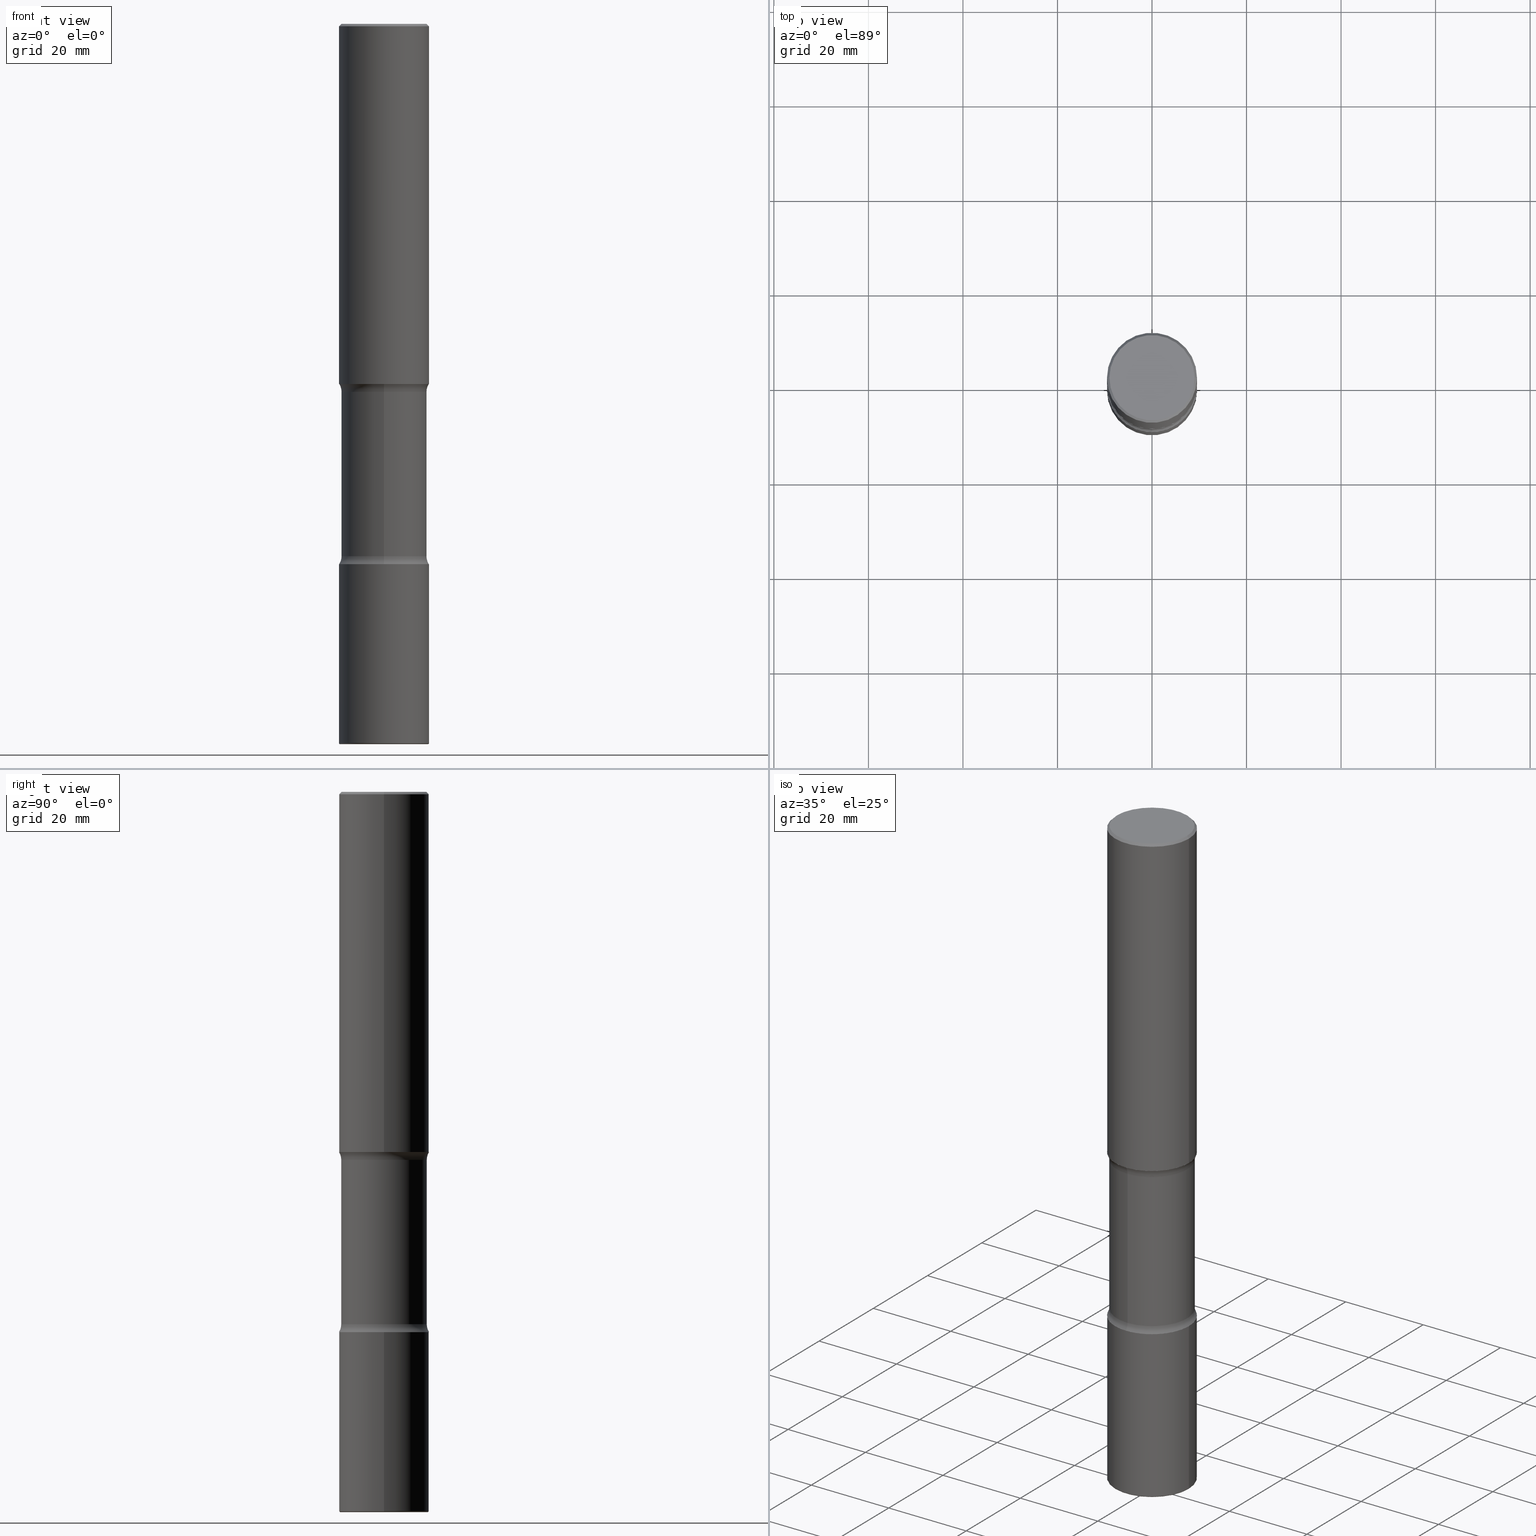
[diagram: canonical four-view strip — front | top / right | iso, engineering-drawing reading convention]
A machine part, canonical four-view strip (front | top / right | iso — engineering-drawing reading convention). The complete STEP part file that produces these views, byte-faithful:
ISO-10303-21;
HEADER;
FILE_DESCRIPTION (( 'STEP AP203' ),
    '1' );
FILE_NAME ('37926.STEP',
    '2024-03-02T01:27:18',
    ( '' ),
    ( '' ),
    'SwSTEP 2.0',
    'SolidWorks 2023',
    '' );
FILE_SCHEMA (( 'CONFIG_CONTROL_DESIGN' ));
ENDSEC;

DATA;
#1 = PERSON_AND_ORGANIZATION_ROLE ( 'creator' ) ;
#2 = CARTESIAN_POINT ( 'NONE',  ( 7.242238421234168109E-29, -1.060929794840300496E-14, -2.999999999999999112 ) ) ;
#3 = CC_DESIGN_APPROVAL ( #433, ( #304 ) ) ;
#4 = SHAPE_DEFINITION_REPRESENTATION ( #202, #160 ) ;
#5 = CARTESIAN_POINT ( 'NONE',  ( 2.618611004132461246E-15, 0.3749999999999845124, -4.500000000000000888 ) ) ;
#6 = EDGE_CURVE ( 'NONE', #307, #196, #179, .T. ) ;
#7 = AXIS2_PLACEMENT_3D ( 'NONE', #31, #215, #556 ) ;
#8 = DIRECTION ( 'NONE',  ( -2.445468806185136597E-29, 3.491481338843145583E-15, 1.000000000000000000 ) ) ;
#9 = ORIENTED_EDGE ( 'NONE', *, *, #508, .T. ) ;
#10 = APPROVAL_STATUS ( 'not_yet_approved' ) ;
#11 = CARTESIAN_POINT ( 'NONE',  ( -0.3750000000000006661, -1.824943796057005747E-14, -5.989999999999999325 ) ) ;
#12 = PERSON_AND_ORGANIZATION ( #212, #276 ) ;
#13 = DIRECTION ( 'NONE',  ( 1.000000000000000000, -6.982962677686270655E-15, 0.000000000000000000 ) ) ;
#14 = CARTESIAN_POINT ( 'NONE',  ( 0.3750000000000003886, -1.833027702892650691E-14, -4.499999999999999112 ) ) ;
#15 = CIRCLE ( 'NONE', #361, 0.3750000000000003886 ) ;
#16 = PLANE ( 'NONE',  #362 ) ;
#17 = ORIENTED_EDGE ( 'NONE', *, *, #153, .F. ) ;
#18 = CARTESIAN_POINT ( 'NONE',  ( 7.402053284434616373E-29, -1.084094290665388719E-14, -3.065847835955329614 ) ) ;
#19 = ORIENTED_EDGE ( 'NONE', *, *, #218, .F. ) ;
#20 = EDGE_CURVE ( 'NONE', #459, #148, #41, .T. ) ;
#21 = DIRECTION ( 'NONE',  ( 6.982962677686265922E-15, 1.000000000000000000, -3.401578717594097873E-15 ) ) ;
#22 = VERTEX_POINT ( 'NONE', #300 ) ;
#23 = TOROIDAL_SURFACE ( 'NONE', #207, 0.3650000000000003242, 0.01000000000000061083 ) ;
#24 = CIRCLE ( 'NONE', #113, 0.3750000000000003886 ) ;
#25 = DIRECTION ( 'NONE',  ( 1.000000000000000000, -6.982962677686266711E-15, 4.876176775795935793E-29 ) ) ;
#26 = EDGE_LOOP ( 'NONE', ( #511, #251 ) ) ;
#27 = DIRECTION ( 'NONE',  ( -2.445468806185136597E-29, 3.491481338843145583E-15, 1.000000000000000000 ) ) ;
#28 = EDGE_LOOP ( 'NONE', ( #103, #85, #205, #17 ) ) ;
#29 = ADVANCED_FACE ( 'NONE', ( #167 ), #23, .T. ) ;
#30 = MANIFOLD_SOLID_BREP ( 'Body-Move/Copy2[2]', #69 ) ;
#31 = CARTESIAN_POINT ( 'NONE',  ( -0.3650000000000003242, -1.832049223414606913E-14, -5.989999999999999325 ) ) ;
#32 = PRODUCT_RELATED_PRODUCT_CATEGORY ( 'detail', '', ( #520 ) ) ;
#33 = AXIS2_PLACEMENT_3D ( 'NONE', #124, #427, #43 ) ;
#34 = CARTESIAN_POINT ( 'NONE',  ( 1.464835814904896579E-28, -2.091397321967043948E-14, -5.989999999999999325 ) ) ;
#35 = CIRCLE ( 'NONE', #273, 0.3750000000000002776 ) ;
#36 = CARTESIAN_POINT ( 'NONE',  ( 7.402053284434616373E-29, -1.084094290665388719E-14, -3.065847835955329614 ) ) ;
#37 = ORIENTED_EDGE ( 'NONE', *, *, #430, .F. ) ;
#38 = ORIENTED_EDGE ( 'NONE', *, *, #20, .F. ) ;
#39 = DIRECTION ( 'NONE',  ( 1.000000000000000000, -6.982962677686267499E-15, 0.000000000000000000 ) ) ;
#40 = DIRECTION ( 'NONE',  ( 2.445468806185136597E-29, -3.491481338843145583E-15, -1.000000000000000000 ) ) ;
#41 = CIRCLE ( 'NONE', #102, 0.3562500000000000111 ) ;
#42 = APPLICATION_PROTOCOL_DEFINITION ( 'international standard', 'config_control_design', 1994, #55 ) ;
#43 = DIRECTION ( 'NONE',  ( 1.000000000000000000, -6.982962677686265922E-15, 0.000000000000000000 ) ) ;
#44 = TOROIDAL_SURFACE ( 'NONE', #89, 0.3650000000000003242, 0.01000000000000061083 ) ;
#45 = DIRECTION ( 'NONE',  ( 2.508247471065963170E-29, -3.401578717594097873E-15, -1.000000000000000000 ) ) ;
#46 = ADVANCED_FACE ( 'NONE', ( #294 ), #368, .T. ) ;
#47 = APPROVAL_STATUS ( 'not_yet_approved' ) ;
#48 = CARTESIAN_POINT ( 'NONE',  ( 1.084358079904955852E-28, -1.548175953435291656E-14, -4.434152164044670386 ) ) ;
#49 = ORIENTED_EDGE ( 'NONE', *, *, #137, .T. ) ;
#50 = CALENDAR_DATE ( 2024, 1, 3 ) ;
#51 = LINE ( 'NONE', #128, #491 ) ;
#52 = AXIS2_PLACEMENT_3D ( 'NONE', #117, #469, #418 ) ;
#53 = EDGE_CURVE ( 'NONE', #332, #22, #197, .T. ) ;
#54 = CARTESIAN_POINT ( 'NONE',  ( 7.407401089244291879E-29, -1.083328454578828421E-14, -3.065847835955329614 ) ) ;
#55 = APPLICATION_CONTEXT ( 'configuration controlled 3d designs of mechanical parts and assemblies' ) ;
#56 = DIRECTION ( 'NONE',  ( -2.445468806185136877E-29, 3.491481338843145188E-15, 1.000000000000000000 ) ) ;
#57 = CC_DESIGN_PERSON_AND_ORGANIZATION_ASSIGNMENT ( #132, #399, ( #478 ) ) ;
#58 = FACE_OUTER_BOUND ( 'NONE', #242, .T. ) ;
#59 = ORIENTED_EDGE ( 'NONE', *, *, #173, .F. ) ;
#60 = VECTOR ( 'NONE', #308, 39.37007874015748143 ) ;
#61 = CARTESIAN_POINT ( 'NONE',  ( 2.478951750578624998E-15, 0.3550000000000000377, -1.237341619044266624E-15 ) ) ;
#62 = ORIENTED_EDGE ( 'NONE', *, *, #267, .T. ) ;
#63 = EDGE_CURVE ( 'NONE', #386, #408, #320, .T. ) ;
#64 = FACE_OUTER_BOUND ( 'NONE', #177, .T. ) ;
#65 = CC_DESIGN_APPROVAL ( #140, ( #169 ) ) ;
#66 = ORIENTED_EDGE ( 'NONE', *, *, #324, .F. ) ;
#67 = CARTESIAN_POINT ( 'NONE',  ( 0.3750000000000001110, -2.642516375941188423E-15, -0.02000000000000006981 ) ) ;
#68 = EDGE_LOOP ( 'NONE', ( #297, #425, #536, #545 ) ) ;
#69 = CLOSED_SHELL ( 'NONE', ( #255, #73, #46, #385, #525, #341 ) ) ;
#70 = VERTEX_POINT ( 'NONE', #217 ) ;
#71 = VERTEX_POINT ( 'NONE', #376 ) ;
#72 = LINE ( 'NONE', #384, #208 ) ;
#73 = ADVANCED_FACE ( 'NONE', ( #303 ), #398, .T. ) ;
#74 = ORIENTED_EDGE ( 'NONE', *, *, #464, .F. ) ;
#75 = DIRECTION ( 'NONE',  ( -2.445468806185136597E-29, 3.491481338843145583E-15, 1.000000000000000000 ) ) ;
#76 = CC_DESIGN_PERSON_AND_ORGANIZATION_ASSIGNMENT ( #523, #1, ( #478 ) ) ;
#77 = DIRECTION ( 'NONE',  ( 6.860497997771531562E-15, 1.000000000000000000, 0.000000000000000000 ) ) ;
#78 = CLOSED_SHELL ( 'NONE', ( #349, #29, #424, #441, #127, #229 ) ) ;
#79 =( LENGTH_UNIT ( ) NAMED_UNIT ( * ) SI_UNIT ( $, .METRE. ) );
#80 = AXIS2_PLACEMENT_3D ( 'NONE', #387, #555, #290 ) ;
#81 = ORIENTED_EDGE ( 'NONE', *, *, #415, .F. ) ;
#82 = DIRECTION ( 'NONE',  ( 6.860497997771532351E-15, 1.000000000000000000, 0.000000000000000000 ) ) ;
#83 = DIRECTION ( 'NONE',  ( 1.000000000000000000, -6.982962677686266711E-15, 4.883557194083113462E-29 ) ) ;
#84 = CALENDAR_DATE ( 2024, 1, 3 ) ;
#85 = ORIENTED_EDGE ( 'NONE', *, *, #6, .T. ) ;
#86 = DIRECTION ( 'NONE',  ( 2.445468806185136597E-29, -3.491481338843145583E-15, -1.000000000000000000 ) ) ;
#87 = AXIS2_PLACEMENT_3D ( 'NONE', #138, #8, #13 ) ;
#88 = CARTESIAN_POINT ( 'NONE',  ( -0.3550000000000000377, 2.513866563967055858E-15, 4.268512490082953109E-18 ) ) ;
#89 = AXIS2_PLACEMENT_3D ( 'NONE', #34, #426, #377 ) ;
#90 = COORDINATED_UNIVERSAL_TIME_OFFSET ( 5, 0, .BEHIND. ) ;
#91 = DIRECTION ( 'NONE',  ( 1.000000000000000000, -6.982962677686124716E-15, 0.000000000000000000 ) ) ;
#92 = LOCAL_TIME ( 20, 27, 18.00000000000000000, #90 ) ;
#93 = APPLICATION_PROTOCOL_DEFINITION ( 'international standard', 'config_control_design', 1994, #382 ) ;
#94 = DIRECTION ( 'NONE',  ( 6.982962677686265922E-15, 1.000000000000000000, -3.401578717594097873E-15 ) ) ;
#95 = CALENDAR_DATE ( 2024, 1, 3 ) ;
#96 = FACE_OUTER_BOUND ( 'NONE', #201, .T. ) ;
#97 = CIRCLE ( 'NONE', #149, 0.3750000000000003886 ) ;
#98 = DIRECTION ( 'NONE',  ( -2.445468806185136597E-29, 3.491481338843145583E-15, 1.000000000000000000 ) ) ;
#99 = CARTESIAN_POINT ( 'NONE',  ( -0.3650000000000003242, -1.830242250405228780E-14, -6.000000000000000888 ) ) ;
#100 = VERTEX_POINT ( 'NONE', #461 ) ;
#101 = CYLINDRICAL_SURFACE ( 'NONE', #379, 0.3562500000000000111 ) ;
#102 = AXIS2_PLACEMENT_3D ( 'NONE', #517, #116, #429 ) ;
#103 = ORIENTED_EDGE ( 'NONE', *, *, #173, .T. ) ;
#104 = EDGE_CURVE ( 'NONE', #307, #500, #446, .T. ) ;
#105 = VECTOR ( 'NONE', #510, 39.37007874015748143 ) ;
#106 = DIRECTION ( 'NONE',  ( 2.508247471065963170E-29, -3.401578717594097873E-15, -1.000000000000000000 ) ) ;
#107 = ORIENTED_EDGE ( 'NONE', *, *, #291, .T. ) ;
#108 = DIRECTION ( 'NONE',  ( 6.982962677686265133E-15, 1.000000000000000000, -3.067338098149347905E-15 ) ) ;
#109 = EDGE_LOOP ( 'NONE', ( #59, #288 ) ) ;
#110 = EDGE_CURVE ( 'NONE', #413, #199, #512, .T. ) ;
#111 = DIRECTION ( 'NONE',  ( 1.000000000000000000, -6.982962677686265922E-15, 4.876176775795935793E-29 ) ) ;
#112 = EDGE_LOOP ( 'NONE', ( #392, #319, #246, #162 ) ) ;
#113 = AXIS2_PLACEMENT_3D ( 'NONE', #210, #27, #466 ) ;
#114 = DIRECTION ( 'NONE',  ( 2.508247471065963170E-29, -3.401578717594097873E-15, -1.000000000000000000 ) ) ;
#115 = AXIS2_PLACEMENT_3D ( 'NONE', #232, #440, #401 ) ;
#116 = DIRECTION ( 'NONE',  ( 2.508247471065963170E-29, -3.401578717594097873E-15, -1.000000000000000000 ) ) ;
#117 = CARTESIAN_POINT ( 'NONE',  ( 7.336406418555407548E-29, -1.047444401652943320E-14, -2.999999999999999112 ) ) ;
#118 = DIRECTION ( 'NONE',  ( -2.445468806185136597E-29, 3.491481338843145583E-15, 1.000000000000000000 ) ) ;
#119 = CARTESIAN_POINT ( 'NONE',  ( -3.301614661427441806E-15, -0.4812500000000156097, -4.434152164044668609 ) ) ;
#120 = EDGE_LOOP ( 'NONE', ( #538, #134, #531, #280 ) ) ;
#121 = ADVANCED_FACE ( 'NONE', ( #463 ), #227, .F. ) ;
#122 = FACE_OUTER_BOUND ( 'NONE', #278, .T. ) ;
#123 = AXIS2_PLACEMENT_3D ( 'NONE', #2, #400, #519 ) ;
#124 = CARTESIAN_POINT ( 'NONE',  ( 4.890937612370289799E-31, -6.982962677686315028E-17, -0.02000000000000006981 ) ) ;
#125 = FACE_OUTER_BOUND ( 'NONE', #490, .T. ) ;
#126 = DIRECTION ( 'NONE',  ( -2.445468806185136597E-29, 3.491481338843145583E-15, 1.000000000000000000 ) ) ;
#127 = ADVANCED_FACE ( 'NONE', ( #422 ), #552, .T. ) ;
#128 = CARTESIAN_POINT ( 'NONE',  ( 0.3750000000000002220, -2.618611004132351594E-15, 1.828566290923477043E-29 ) ) ;
#129 = DESIGN_CONTEXT ( 'detailed design', #55, 'design' ) ;
#130 = LINE ( 'NONE', #477, #405 ) ;
#131 = CIRCLE ( 'NONE', #333, 0.1249999999999999584 ) ;
#132 = PERSON_AND_ORGANIZATION ( #212, #276 ) ;
#133 = DIRECTION ( 'NONE',  ( -2.445468806185136597E-29, 3.491481338843145583E-15, 1.000000000000000000 ) ) ;
#134 = ORIENTED_EDGE ( 'NONE', *, *, #471, .T. ) ;
#135 = PERSON_AND_ORGANIZATION ( #212, #276 ) ;
#136 = FACE_OUTER_BOUND ( 'NONE', #496, .T. ) ;
#137 = EDGE_CURVE ( 'NONE', #258, #155, #456, .T. ) ;
#138 = CARTESIAN_POINT ( 'NONE',  ( 1.467281283711081958E-28, -2.094888803305887271E-14, -6.000000000000000888 ) ) ;
#139 = AXIS2_PLACEMENT_3D ( 'NONE', #147, #448, #21 ) ;
#140 = APPROVAL ( #47, 'UNSPECIFIED' ) ;
#141 = CARTESIAN_POINT ( 'NONE',  ( 1.100460962783311244E-28, -1.571166602479415374E-14, -4.499999999999999112 ) ) ;
#142 = ORIENTED_EDGE ( 'NONE', *, *, #6, .F. ) ;
#143 = EDGE_CURVE ( 'NONE', #445, #416, #15, .T. ) ;
#144 = CARTESIAN_POINT ( 'NONE',  ( 0.3550000000000000377, -2.538996582575041048E-15, 4.268512490117958041E-18 ) ) ;
#145 = ORIENTED_EDGE ( 'NONE', *, *, #486, .F. ) ;
#146 = AXIS2_PLACEMENT_3D ( 'NONE', #161, #336, #509 ) ;
#147 = CARTESIAN_POINT ( 'NONE',  ( 7.336406418555407548E-29, -1.047444401652943320E-14, -2.999999999999999112 ) ) ;
#148 = VERTEX_POINT ( 'NONE', #347 ) ;
#149 = AXIS2_PLACEMENT_3D ( 'NONE', #245, #189, #535 ) ;
#150 = CARTESIAN_POINT ( 'NONE',  ( 1.084358079904955852E-28, -1.548175953435291656E-14, -4.434152164044670386 ) ) ;
#151 = ORIENTED_EDGE ( 'NONE', *, *, #533, .T. ) ;
#152 = ORIENTED_EDGE ( 'NONE', *, *, #324, .T. ) ;
#153 = EDGE_CURVE ( 'NONE', #500, #494, #157, .T. ) ;
#154 = DIRECTION ( 'NONE',  ( 6.982962677686265133E-15, 1.000000000000000000, -3.067338098149347905E-15 ) ) ;
#155 = VERTEX_POINT ( 'NONE', #315 ) ;
#156 = ORIENTED_EDGE ( 'NONE', *, *, #209, .F. ) ;
#157 = CIRCLE ( 'NONE', #428, 0.01000000000000057614 ) ;
#158 = CIRCLE ( 'NONE', #231, 0.1249999999999999584 ) ;
#159 = CARTESIAN_POINT ( 'NONE',  ( -3.301614661427474544E-15, -0.4812500000000108358, -3.065847835955327838 ) ) ;
#160 = ADVANCED_BREP_SHAPE_REPRESENTATION ( '37926', ( #534, #30, #345, #115 ), #506 ) ;
#161 = CARTESIAN_POINT ( 'NONE',  ( -1.043851414335219820E-46, 1.490343170380447200E-32, 4.268512490100411279E-18 ) ) ;
#162 = ORIENTED_EDGE ( 'NONE', *, *, #267, .F. ) ;
#163 =( NAMED_UNIT ( * ) SI_UNIT ( $, .STERADIAN. ) SOLID_ANGLE_UNIT ( ) );
#164 = EDGE_CURVE ( 'NONE', #494, #196, #188, .T. ) ;
#165 = CARTESIAN_POINT ( 'NONE',  ( 0.000000000000000000, 0.000000000000000000, 0.000000000000000000 ) ) ;
#166 = FACE_OUTER_BOUND ( 'NONE', #109, .T. ) ;
#167 = FACE_OUTER_BOUND ( 'NONE', #28, .T. ) ;
#168 = DIMENSIONAL_EXPONENTS ( 1.000000000000000000, 0.000000000000000000, 0.000000000000000000, 0.000000000000000000, 0.000000000000000000, 0.000000000000000000, 0.000000000000000000 ) ;
#169 = PRODUCT_DEFINITION ( 'UNKNOWN', '', #478, #129 ) ;
#170 = LINE ( 'NONE', #343, #105 ) ;
#171 = CIRCLE ( 'NONE', #504, 0.1249999999999998335 ) ;
#172 = ORIENTED_EDGE ( 'NONE', *, *, #20, .T. ) ;
#173 = EDGE_CURVE ( 'NONE', #500, #307, #331, .T. ) ;
#174 = PERSON_AND_ORGANIZATION ( #212, #276 ) ;
#175 = CARTESIAN_POINT ( 'NONE',  ( 1.100460962783311244E-28, -1.571166602479415374E-14, -4.499999999999999112 ) ) ;
#176 = DATE_AND_TIME ( #84, #497 ) ;
#177 = EDGE_LOOP ( 'NONE', ( #145, #329, #472, #172 ) ) ;
#178 = DIRECTION ( 'NONE',  ( 6.982962677686265922E-15, 1.000000000000000000, -2.913971193241877611E-15 ) ) ;
#179 = CIRCLE ( 'NONE', #7, 0.01000000000000057614 ) ;
#180 = UNCERTAINTY_MEASURE_WITH_UNIT (LENGTH_MEASURE( 1.000000000000000082E-05 ), #293, 'distance_accuracy_value', 'NONE');
#181 = APPROVAL_ROLE ( '' ) ;
#182 = CARTESIAN_POINT ( 'NONE',  ( 0.000000000000000000, 0.000000000000000000, 0.000000000000000000 ) ) ;
#183 = MECHANICAL_CONTEXT ( 'NONE', #382, 'mechanical' ) ;
#184 = FACE_OUTER_BOUND ( 'NONE', #204, .T. ) ;
#185 = EDGE_CURVE ( 'NONE', #413, #386, #130, .T. ) ;
#186 = DATE_TIME_ROLE ( 'creation_date' ) ;
#187 = CARTESIAN_POINT ( 'NONE',  ( 1.476698083443205790E-28, -2.081403410118529621E-14, -5.999999999999999112 ) ) ;
#188 = CIRCLE ( 'NONE', #502, 0.3750000000000002776 ) ;
#189 = DIRECTION ( 'NONE',  ( 2.508247471065963170E-29, -3.401578717594097873E-15, -1.000000000000000000 ) ) ;
#190 = CIRCLE ( 'NONE', #484, 0.3750000000000003886 ) ;
#191 = EDGE_CURVE ( 'NONE', #22, #332, #190, .T. ) ;
#192 = CARTESIAN_POINT ( 'NONE',  ( 2.618611004132426142E-15, 0.3749999999999898415, -3.000000000000000444 ) ) ;
#193 = ORIENTED_EDGE ( 'NONE', *, *, #533, .F. ) ;
#194 = LOCAL_TIME ( 20, 27, 18.00000000000000000, #394 ) ;
#195 = LINE ( 'NONE', #282, #314 ) ;
#196 = VERTEX_POINT ( 'NONE', #11 ) ;
#197 = CIRCLE ( 'NONE', #244, 0.3750000000000003886 ) ;
#198 = DIRECTION ( 'NONE',  ( -1.000000000000000000, 6.982962677686265922E-15, -4.883557194083112901E-29 ) ) ;
#199 = VERTEX_POINT ( 'NONE', #88 ) ;
#200 = DIRECTION ( 'NONE',  ( 2.508247471065963170E-29, -3.401578717594097873E-15, -1.000000000000000000 ) ) ;
#201 = EDGE_LOOP ( 'NONE', ( #317, #488 ) ) ;
#202 = PRODUCT_DEFINITION_SHAPE ( 'NONE', 'NONE',  #169 ) ;
#203 = DIRECTION ( 'NONE',  ( 1.000000000000000000, -6.860497997771530774E-15, 4.841899869197618814E-29 ) ) ;
#204 = EDGE_LOOP ( 'NONE', ( #283, #372, #326, #19 ) ) ;
#205 = ORIENTED_EDGE ( 'NONE', *, *, #164, .F. ) ;
#206 = ORIENTED_EDGE ( 'NONE', *, *, #498, .F. ) ;
#207 = AXIS2_PLACEMENT_3D ( 'NONE', #340, #75, #83 ) ;
#208 = VECTOR ( 'NONE', #249, 39.37007874015748143 ) ;
#209 = EDGE_CURVE ( 'NONE', #199, #413, #483, .T. ) ;
#210 = CARTESIAN_POINT ( 'NONE',  ( 7.336406418555407548E-29, -1.047444401652943320E-14, -2.999999999999999112 ) ) ;
#211 = DIRECTION ( 'NONE',  ( 2.508247471065963170E-29, -3.401578717594097873E-15, -1.000000000000000000 ) ) ;
#212 = PERSON ( 'UNSPECIFIED', 'UNSPECIFIED', 'UNSPECIFIED', ('UNSPECIFIED'), ('UNSPECIFIED'), ('UNSPECIFIED') ) ;
#213 = CC_DESIGN_PERSON_AND_ORGANIZATION_ASSIGNMENT ( #475, #434, ( #520 ) ) ;
#214 = CARTESIAN_POINT ( 'NONE',  ( 1.464835814904896579E-28, -2.091397321967043948E-14, -5.989999999999999325 ) ) ;
#215 = DIRECTION ( 'NONE',  ( 7.105427357601001859E-15, 1.000000000000000000, -3.491481338843145583E-15 ) ) ;
#216 = LINE ( 'NONE', #252, #281 ) ;
#217 = CARTESIAN_POINT ( 'NONE',  ( 2.487680453925806274E-15, 0.3562499999999891309, -3.065847835955330503 ) ) ;
#218 = EDGE_CURVE ( 'NONE', #258, #459, #171, .T. ) ;
#219 = TOROIDAL_SURFACE ( 'NONE', #417, 0.4812500000000000666, 0.1249999999999998612 ) ;
#220 = DATE_AND_TIME ( #261, #554 ) ;
#221 = CARTESIAN_POINT ( 'NONE',  ( 1.100460962783311244E-28, -1.571166602479415374E-14, -4.499999999999999112 ) ) ;
#222 = APPROVAL_DATE_TIME ( #356, #140 ) ;
#223 = CARTESIAN_POINT ( 'NONE',  ( 0.3650000000000003242, -2.346275459702592935E-14, -5.989999999999999325 ) ) ;
#224 = CC_DESIGN_APPROVAL ( #334, ( #478 ) ) ;
#225 = DATE_AND_TIME ( #95, #92 ) ;
#226 = DIRECTION ( 'NONE',  ( 2.508247471065963170E-29, -3.401578717594097873E-15, -1.000000000000000000 ) ) ;
#227 = TOROIDAL_SURFACE ( 'NONE', #388, 0.4812499999999999556, 0.1249999999999999584 ) ;
#228 = CALENDAR_DATE ( 2024, 1, 3 ) ;
#229 = ADVANCED_FACE ( 'NONE', ( #96 ), #443, .F. ) ;
#230 = CARTESIAN_POINT ( 'NONE',  ( 1.100460962783311244E-28, -1.571166602479415374E-14, -4.499999999999999112 ) ) ;
#231 = AXIS2_PLACEMENT_3D ( 'NONE', #159, #203, #82 ) ;
#232 = CARTESIAN_POINT ( 'NONE',  ( 0.000000000000000000, 0.000000000000000000, 0.000000000000000000 ) ) ;
#233 = DIRECTION ( 'NONE',  ( 1.000000000000000000, -6.982962677686265922E-15, 4.876176775795935793E-29 ) ) ;
#234 = DIRECTION ( 'NONE',  ( 6.982962677686265922E-15, 1.000000000000000000, -3.401578717594097873E-15 ) ) ;
#235 = EDGE_CURVE ( 'NONE', #411, #100, #247, .T. ) ;
#236 = AXIS2_PLACEMENT_3D ( 'NONE', #165, #360, #233 ) ;
#237 = ORIENTED_EDGE ( 'NONE', *, *, #235, .F. ) ;
#238 = CIRCLE ( 'NONE', #541, 0.1249999999999998335 ) ;
#239 = DIRECTION ( 'NONE',  ( -2.445468806185136597E-29, 3.491481338843145583E-15, 1.000000000000000000 ) ) ;
#240 = EDGE_LOOP ( 'NONE', ( #237, #81 ) ) ;
#241 = CARTESIAN_POINT ( 'NONE',  ( 0.3750000000000003886, -2.618611004132352383E-15, 1.828566290923477884E-29 ) ) ;
#242 = EDGE_LOOP ( 'NONE', ( #559, #37, #543, #344 ) ) ;
#243 = EDGE_CURVE ( 'NONE', #445, #386, #51, .T. ) ;
#244 = AXIS2_PLACEMENT_3D ( 'NONE', #260, #126, #292 ) ;
#245 = CARTESIAN_POINT ( 'NONE',  ( 1.100460962783311244E-28, -1.571166602479415374E-14, -4.499999999999999112 ) ) ;
#246 = ORIENTED_EDGE ( 'NONE', *, *, #63, .T. ) ;
#247 = CIRCLE ( 'NONE', #123, 0.3750000000000004996 ) ;
#248 = AXIS2_PLACEMENT_3D ( 'NONE', #221, #393, #481 ) ;
#249 = DIRECTION ( 'NONE',  ( -2.445468806185136877E-29, 3.491481338843145188E-15, 1.000000000000000000 ) ) ;
#250 = ORIENTED_EDGE ( 'NONE', *, *, #153, .T. ) ;
#251 = ORIENTED_EDGE ( 'NONE', *, *, #110, .T. ) ;
#252 = CARTESIAN_POINT ( 'NONE',  ( -2.444052411705960129E-15, -0.3562500000000208278, -5.999999999999998224 ) ) ;
#253 = APPROVAL_PERSON_ORGANIZATION ( #436, #140, #302 ) ;
#254 = CARTESIAN_POINT ( 'NONE',  ( 1.467281283711081958E-28, -2.094888803305887271E-14, -6.000000000000000888 ) ) ;
#255 = ADVANCED_FACE ( 'NONE', ( #473 ), #476, .T. ) ;
#256 = DIRECTION ( 'NONE',  ( -1.000000000000000000, 6.982962677686265922E-15, 0.000000000000000000 ) ) ;
#257 = AXIS2_PLACEMENT_3D ( 'NONE', #339, #259, #337 ) ;
#258 = VERTEX_POINT ( 'NONE', #5 ) ;
#259 = DIRECTION ( 'NONE',  ( 2.438088387897960049E-29, -3.491481338843145188E-15, -1.000000000000000000 ) ) ;
#260 = CARTESIAN_POINT ( 'NONE',  ( 1.100460962783311244E-28, -1.571166602479415374E-14, -4.499999999999999112 ) ) ;
#261 = CALENDAR_DATE ( 2024, 1, 3 ) ;
#262 = DIRECTION ( 'NONE',  ( -1.000000000000000000, 6.982962677686265922E-15, 0.000000000000000000 ) ) ;
#263 = AXIS2_PLACEMENT_3D ( 'NONE', #54, #200, #108 ) ;
#264 = ORIENTED_EDGE ( 'NONE', *, *, #243, .F. ) ;
#265 = DIRECTION ( 'NONE',  ( -2.445468806185136877E-29, 3.491481338843145188E-15, 1.000000000000000000 ) ) ;
#266 = DIRECTION ( 'NONE',  ( -2.445468806185136597E-29, 3.491481338843145583E-15, 1.000000000000000000 ) ) ;
#267 = EDGE_CURVE ( 'NONE', #199, #408, #402, .T. ) ;
#268 = DIRECTION ( 'NONE',  ( 1.000000000000000000, -6.982962677686265922E-15, 0.000000000000000000 ) ) ;
#269 = CC_DESIGN_DATE_AND_TIME_ASSIGNMENT ( #176, #346, ( #304 ) ) ;
#270 = COORDINATED_UNIVERSAL_TIME_OFFSET ( 5, 0, .BEHIND. ) ;
#271 = EDGE_LOOP ( 'NONE', ( #365, #107, #152, #419 ) ) ;
#272 = DIRECTION ( 'NONE',  ( -6.982962677686268288E-15, -1.000000000000000000, 0.000000000000000000 ) ) ;
#273 = AXIS2_PLACEMENT_3D ( 'NONE', #214, #548, #39 ) ;
#274 = ADVANCED_FACE ( 'NONE', ( #184 ), #474, .F. ) ;
#275 = DIRECTION ( 'NONE',  ( -1.000000000000000000, 6.982962677686265922E-15, -4.883557194083112901E-29 ) ) ;
#276 = ORGANIZATION ( 'UNSPECIFIED', 'UNSPECIFIED', '' ) ;
#277 = FACE_OUTER_BOUND ( 'NONE', #286, .T. ) ;
#278 = EDGE_LOOP ( 'NONE', ( #451, #74 ) ) ;
#279 = CARTESIAN_POINT ( 'NONE',  ( 3.360550788636589613E-15, 0.4812499999999890754, -3.065847835955331391 ) ) ;
#280 = ORIENTED_EDGE ( 'NONE', *, *, #309, .F. ) ;
#281 = VECTOR ( 'NONE', #114, 39.37007874015748143 ) ;
#282 = CARTESIAN_POINT ( 'NONE',  ( 2.487680453925879638E-15, 0.3562499999999791389, -6.000000000000000888 ) ) ;
#283 = ORIENTED_EDGE ( 'NONE', *, *, #403, .F. ) ;
#284 = ADVANCED_FACE ( 'NONE', ( #136 ), #312, .T. ) ;
#285 = DIRECTION ( 'NONE',  ( 2.438088387897960049E-29, -3.491481338843145188E-15, -1.000000000000000000 ) ) ;
#286 = EDGE_LOOP ( 'NONE', ( #206, #373, #378, #193 ) ) ;
#287 = AXIS2_PLACEMENT_3D ( 'NONE', #230, #397, #178 ) ;
#288 = ORIENTED_EDGE ( 'NONE', *, *, #104, .F. ) ;
#289 = AXIS2_PLACEMENT_3D ( 'NONE', #489, #539, #321 ) ;
#290 = DIRECTION ( 'NONE',  ( 6.982962677686265133E-15, 1.000000000000000000, -3.067338098149347905E-15 ) ) ;
#291 = EDGE_CURVE ( 'NONE', #71, #70, #323, .T. ) ;
#292 = DIRECTION ( 'NONE',  ( 1.000000000000000000, -6.982962677686265922E-15, 0.000000000000000000 ) ) ;
#293 =( CONVERSION_BASED_UNIT ( 'INCH', #420 ) LENGTH_UNIT ( ) NAMED_UNIT ( #168 ) );
#294 = FACE_OUTER_BOUND ( 'NONE', #389, .T. ) ;
#295 = CC_DESIGN_PERSON_AND_ORGANIZATION_ASSIGNMENT ( #174, #348, ( #169 ) ) ;
#296 = CARTESIAN_POINT ( 'NONE',  ( 0.3650000000000003242, -2.349766941041436574E-14, -6.000000000000000888 ) ) ;
#297 = ORIENTED_EDGE ( 'NONE', *, *, #291, .F. ) ;
#298 = AXIS2_PLACEMENT_3D ( 'NONE', #187, #45, #442 ) ;
#299 = PLANE ( 'NONE',  #52 ) ;
#300 = CARTESIAN_POINT ( 'NONE',  ( -0.3750000000000003886, -1.564828436313191776E-14, -4.499999999999999112 ) ) ;
#301 = ADVANCED_FACE ( 'NONE', ( #363 ), #16, .F. ) ;
#302 = APPROVAL_ROLE ( '' ) ;
#303 = FACE_OUTER_BOUND ( 'NONE', #112, .T. ) ;
#304 = SECURITY_CLASSIFICATION ( '', '', #470 ) ;
#305 = DIRECTION ( 'NONE',  ( 1.000000000000000000, -6.982962677686266711E-15, 4.876231632511987623E-29 ) ) ;
#306 = AXIS2_PLACEMENT_3D ( 'NONE', #48, #226, #94 ) ;
#307 = VERTEX_POINT ( 'NONE', #99 ) ;
#308 = DIRECTION ( 'NONE',  ( -0.7071067811865472397, 2.468850131082253905E-15, -0.7071067811865477948 ) ) ;
#309 = EDGE_CURVE ( 'NONE', #494, #332, #542, .T. ) ;
#310 = DIRECTION ( 'NONE',  ( 1.000000000000000000, -6.982962677686266711E-15, 4.876176775795935793E-29 ) ) ;
#311 = APPROVAL_STATUS ( 'not_yet_approved' ) ;
#312 = CYLINDRICAL_SURFACE ( 'NONE', #298, 0.3562500000000000111 ) ;
#313 = ADVANCED_FACE ( 'NONE', ( #64 ), #219, .F. ) ;
#314 = VECTOR ( 'NONE', #412, 39.37007874015748143 ) ;
#315 = CARTESIAN_POINT ( 'NONE',  ( -2.572686749164215473E-15, -0.3750000000000159317, -4.499999999999998224 ) ) ;
#316 = DIRECTION ( 'NONE',  ( -2.508247471065962609E-29, 3.401578717594097873E-15, 1.000000000000000000 ) ) ;
#317 = ORIENTED_EDGE ( 'NONE', *, *, #53, .T. ) ;
#318 = CARTESIAN_POINT ( 'NONE',  ( 0.000000000000000000, 0.000000000000000000, 0.000000000000000000 ) ) ;
#319 = ORIENTED_EDGE ( 'NONE', *, *, #185, .T. ) ;
#320 = CIRCLE ( 'NONE', #33, 0.3750000000000001110 ) ;
#321 = DIRECTION ( 'NONE',  ( 6.982962677686266711E-15, 1.000000000000000000, -2.913971193241876822E-15 ) ) ;
#322 = ORIENTED_EDGE ( 'NONE', *, *, #143, .T. ) ;
#323 = CIRCLE ( 'NONE', #263, 0.3562500000000000111 ) ;
#324 = EDGE_CURVE ( 'NONE', #70, #459, #195, .T. ) ;
#325 = CYLINDRICAL_SURFACE ( 'NONE', #458, 0.3750000000000003886 ) ;
#326 = ORIENTED_EDGE ( 'NONE', *, *, #453, .T. ) ;
#327 = LOCAL_TIME ( 20, 27, 18.00000000000000000, #352 ) ;
#328 = PLANE ( 'NONE',  #390 ) ;
#329 = ORIENTED_EDGE ( 'NONE', *, *, #137, .F. ) ;
#330 = ADVANCED_FACE ( 'NONE', ( #369 ), #450, .F. ) ;
#331 = CIRCLE ( 'NONE', #87, 0.3650000000000003242 ) ;
#332 = VERTEX_POINT ( 'NONE', #14 ) ;
#333 = AXIS2_PLACEMENT_3D ( 'NONE', #279, #198, #404 ) ;
#334 = APPROVAL ( #10, 'UNSPECIFIED' ) ;
#335 = CARTESIAN_POINT ( 'NONE',  ( 0.3750000000000003886, -1.309305502066178637E-14, -2.999999999999999112 ) ) ;
#336 = DIRECTION ( 'NONE',  ( -2.445468806185136597E-29, 3.491481338843145583E-15, 1.000000000000000000 ) ) ;
#337 = DIRECTION ( 'NONE',  ( -1.000000000000000000, 6.982962677686265922E-15, -4.876176775795935793E-29 ) ) ;
#338 = ORIENTED_EDGE ( 'NONE', *, *, #403, .T. ) ;
#339 = CARTESIAN_POINT ( 'NONE',  ( 2.129431414073243323E-29, -3.891172415578277523E-14, -5.999999999999999112 ) ) ;
#340 = CARTESIAN_POINT ( 'NONE',  ( 1.464835814904896579E-28, -2.091397321967043948E-14, -5.989999999999999325 ) ) ;
#341 = ADVANCED_FACE ( 'NONE', ( #277 ), #410, .T. ) ;
#342 = AXIS2_PLACEMENT_3D ( 'NONE', #414, #499, #25 ) ;
#343 = CARTESIAN_POINT ( 'NONE',  ( -0.3750000000000003886, 2.664535259100378458E-15, -1.844600658845591560E-29 ) ) ;
#344 = ORIENTED_EDGE ( 'NONE', *, *, #235, .T. ) ;
#345 = MANIFOLD_SOLID_BREP ( 'Body-Move/Copy2[4]', #482 ) ;
#346 = DATE_TIME_ROLE ( 'classification_date' ) ;
#347 = CARTESIAN_POINT ( 'NONE',  ( -2.508369580435107128E-15, -0.3562500000000154987, -4.434152164044668609 ) ) ;
#348 = PERSON_AND_ORGANIZATION_ROLE ( 'creator' ) ;
#349 = ADVANCED_FACE ( 'NONE', ( #366 ), #325, .T. ) ;
#350 = DIRECTION ( 'NONE',  ( 1.000000000000000000, -6.982962677686265922E-15, 0.000000000000000000 ) ) ;
#351 = CIRCLE ( 'NONE', #423, 0.3750000000000001110 ) ;
#352 = COORDINATED_UNIVERSAL_TIME_OFFSET ( 5, 0, .BEHIND. ) ;
#353 = CC_DESIGN_DATE_AND_TIME_ASSIGNMENT ( #225, #186, ( #169 ) ) ;
#354 = DIRECTION ( 'NONE',  ( -2.445468806185136597E-29, 3.491481338843145583E-15, 1.000000000000000000 ) ) ;
#355 = EDGE_LOOP ( 'NONE', ( #49, #338 ) ) ;
#356 = DATE_AND_TIME ( #50, #327 ) ;
#357 = APPROVAL_PERSON_ORGANIZATION ( #135, #433, #480 ) ;
#358 = ADVANCED_FACE ( 'NONE', ( #537 ), #101, .T. ) ;
#359 = DATE_AND_TIME ( #228, #194 ) ;
#360 = DIRECTION ( 'NONE',  ( -2.445468806185136597E-29, 3.491481338843145583E-15, 1.000000000000000000 ) ) ;
#361 = AXIS2_PLACEMENT_3D ( 'NONE', #395, #266, #350 ) ;
#362 = AXIS2_PLACEMENT_3D ( 'NONE', #141, #316, #487 ) ;
#363 = FACE_OUTER_BOUND ( 'NONE', #355, .T. ) ;
#364 = DIRECTION ( 'NONE',  ( 6.982962677686265922E-15, 1.000000000000000000, -3.401578717594097873E-15 ) ) ;
#365 = ORIENTED_EDGE ( 'NONE', *, *, #508, .F. ) ;
#366 = FACE_OUTER_BOUND ( 'NONE', #120, .T. ) ;
#367 = ORIENTED_EDGE ( 'NONE', *, *, #104, .T. ) ;
#368 = CONICAL_SURFACE ( 'NONE', #465, 0.3750000000000001110, 0.7853981633974479459 ) ;
#369 = FACE_OUTER_BOUND ( 'NONE', #240, .T. ) ;
#370 = ORIENTED_EDGE ( 'NONE', *, *, #191, .F. ) ;
#371 = DIRECTION ( 'NONE',  ( 2.508247471065963170E-29, -3.401578717594097873E-15, -1.000000000000000000 ) ) ;
#372 = ORIENTED_EDGE ( 'NONE', *, *, #486, .T. ) ;
#373 = ORIENTED_EDGE ( 'NONE', *, *, #464, .T. ) ;
#374 = EDGE_CURVE ( 'NONE', #70, #411, #131, .T. ) ;
#375 = CARTESIAN_POINT ( 'NONE',  ( 4.890937612370289799E-31, -6.982962677686315028E-17, -0.02000000000000006981 ) ) ;
#376 = CARTESIAN_POINT ( 'NONE',  ( -2.508369580435144205E-15, -0.3562500000000108358, -3.065847835955328282 ) ) ;
#377 = DIRECTION ( 'NONE',  ( 1.000000000000000000, -6.982962677686266711E-15, 4.883557194083113462E-29 ) ) ;
#378 = ORIENTED_EDGE ( 'NONE', *, *, #243, .T. ) ;
#379 = AXIS2_PLACEMENT_3D ( 'NONE', #544, #371, #154 ) ;
#380 = DIRECTION ( 'NONE',  ( -2.445468806185136597E-29, 3.491481338843145583E-15, 1.000000000000000000 ) ) ;
#381 = DIRECTION ( 'NONE',  ( 6.982962677686265922E-15, 1.000000000000000000, -3.401578717594097873E-15 ) ) ;
#382 = APPLICATION_CONTEXT ( 'configuration controlled 3d designs of mechanical parts and assemblies' ) ;
#383 = APPROVAL_PERSON_ORGANIZATION ( #12, #334, #181 ) ;
#384 = CARTESIAN_POINT ( 'NONE',  ( -0.3750000000000002220, 2.664535259100377275E-15, -1.844600658845590719E-29 ) ) ;
#385 = ADVANCED_FACE ( 'NONE', ( #495 ), #328, .F. ) ;
#386 = VERTEX_POINT ( 'NONE', #67 ) ;
#387 = CARTESIAN_POINT ( 'NONE',  ( 7.407401089244291879E-29, -1.083328454578828421E-14, -3.065847835955329614 ) ) ;
#388 = AXIS2_PLACEMENT_3D ( 'NONE', #36, #211, #381 ) ;
#389 = EDGE_LOOP ( 'NONE', ( #455, #156, #62, #151 ) ) ;
#390 = AXIS2_PLACEMENT_3D ( 'NONE', #61, #285, #454 ) ;
#391 = APPROVAL_DATE_TIME ( #220, #433 ) ;
#392 = ORIENTED_EDGE ( 'NONE', *, *, #110, .F. ) ;
#393 = DIRECTION ( 'NONE',  ( 2.438088387897960049E-29, -3.491481338843145188E-15, -1.000000000000000000 ) ) ;
#394 = COORDINATED_UNIVERSAL_TIME_OFFSET ( 5, 0, .BEHIND. ) ;
#395 = CARTESIAN_POINT ( 'NONE',  ( 7.336406418555407548E-29, -1.047444401652943320E-14, -2.999999999999999112 ) ) ;
#396 = APPROVAL_DATE_TIME ( #359, #334 ) ;
#397 = DIRECTION ( 'NONE',  ( 2.508247471065963170E-29, -3.401578717594097873E-15, -1.000000000000000000 ) ) ;
#398 = CONICAL_SURFACE ( 'NONE', #438, 0.3750000000000001110, 0.7853981633974479459 ) ;
#399 = PERSON_AND_ORGANIZATION_ROLE ( 'design_supplier' ) ;
#400 = DIRECTION ( 'NONE',  ( 2.508247471065963170E-29, -3.401578717594097873E-15, -1.000000000000000000 ) ) ;
#401 = DIRECTION ( 'NONE',  ( 1.000000000000000000, 0.000000000000000000, 0.000000000000000000 ) ) ;
#402 = LINE ( 'NONE', #435, #60 ) ;
#403 = EDGE_CURVE ( 'NONE', #155, #258, #97, .T. ) ;
#404 = DIRECTION ( 'NONE',  ( -6.982962677686265133E-15, -1.000000000000000000, 0.000000000000000000 ) ) ;
#405 = VECTOR ( 'NONE', #524, 39.37007874015748143 ) ;
#406 = AXIS2_PLACEMENT_3D ( 'NONE', #516, #558, #503 ) ;
#407 = DIRECTION ( 'NONE',  ( 2.508247471065963170E-29, -3.401578717594097873E-15, -1.000000000000000000 ) ) ;
#408 = VERTEX_POINT ( 'NONE', #444 ) ;
#409 = ADVANCED_FACE ( 'NONE', ( #58 ), #522, .F. ) ;
#410 = CYLINDRICAL_SURFACE ( 'NONE', #342, 0.3750000000000002220 ) ;
#411 = VERTEX_POINT ( 'NONE', #192 ) ;
#412 = DIRECTION ( 'NONE',  ( 2.508247471065963170E-29, -3.401578717594097873E-15, -1.000000000000000000 ) ) ;
#413 = VERTEX_POINT ( 'NONE', #144 ) ;
#414 = CARTESIAN_POINT ( 'NONE',  ( 0.000000000000000000, 0.000000000000000000, 0.000000000000000000 ) ) ;
#415 = EDGE_CURVE ( 'NONE', #100, #411, #532, .T. ) ;
#416 = VERTEX_POINT ( 'NONE', #492 ) ;
#417 = AXIS2_PLACEMENT_3D ( 'NONE', #150, #106, #234 ) ;
#418 = DIRECTION ( 'NONE',  ( 1.000000000000000000, -6.982962677686265922E-15, 4.876176775795935793E-29 ) ) ;
#419 = ORIENTED_EDGE ( 'NONE', *, *, #453, .F. ) ;
#420 = LENGTH_MEASURE_WITH_UNIT ( LENGTH_MEASURE( 0.02539999999999999897 ), #79 );
#421 = ORIENTED_EDGE ( 'NONE', *, *, #471, .F. ) ;
#422 = FACE_OUTER_BOUND ( 'NONE', #553, .T. ) ;
#423 = AXIS2_PLACEMENT_3D ( 'NONE', #375, #380, #546 ) ;
#424 = ADVANCED_FACE ( 'NONE', ( #166 ), #460, .T. ) ;
#425 = ORIENTED_EDGE ( 'NONE', *, *, #479, .T. ) ;
#426 = DIRECTION ( 'NONE',  ( -2.445468806185136597E-29, 3.491481338843145583E-15, 1.000000000000000000 ) ) ;
#427 = DIRECTION ( 'NONE',  ( -2.445468806185136597E-29, 3.491481338843145583E-15, 1.000000000000000000 ) ) ;
#428 = AXIS2_PLACEMENT_3D ( 'NONE', #223, #528, #91 ) ;
#429 = DIRECTION ( 'NONE',  ( 6.982962677686265133E-15, 1.000000000000000000, -3.067338098149347905E-15 ) ) ;
#430 = EDGE_CURVE ( 'NONE', #70, #71, #439, .T. ) ;
#431 = AXIS2_PLACEMENT_3D ( 'NONE', #182, #432, #310 ) ;
#432 = DIRECTION ( 'NONE',  ( -2.445468806185136597E-29, 3.491481338843145583E-15, 1.000000000000000000 ) ) ;
#433 = APPROVAL ( #311, 'UNSPECIFIED' ) ;
#434 = PERSON_AND_ORGANIZATION_ROLE ( 'design_owner' ) ;
#435 = CARTESIAN_POINT ( 'NONE',  ( -0.3750000000000001110, 2.548781377355487113E-15, -0.02000000000000006981 ) ) ;
#436 = PERSON_AND_ORGANIZATION ( #212, #276 ) ;
#437 = CARTESIAN_POINT ( 'NONE',  ( -1.043851414335219820E-46, 1.490343170380447200E-32, 4.268512490100411279E-18 ) ) ;
#438 = AXIS2_PLACEMENT_3D ( 'NONE', #547, #86, #262 ) ;
#439 = CIRCLE ( 'NONE', #80, 0.3562500000000000111 ) ;
#440 = DIRECTION ( 'NONE',  ( 0.000000000000000000, 0.000000000000000000, 1.000000000000000000 ) ) ;
#441 = ADVANCED_FACE ( 'NONE', ( #125 ), #44, .T. ) ;
#442 = DIRECTION ( 'NONE',  ( 6.982962677686265133E-15, 1.000000000000000000, -3.067338098149347905E-15 ) ) ;
#443 = PLANE ( 'NONE',  #248 ) ;
#444 = CARTESIAN_POINT ( 'NONE',  ( -0.3750000000000001110, 2.548781377355487113E-15, -0.02000000000000006981 ) ) ;
#445 = VERTEX_POINT ( 'NONE', #335 ) ;
#446 = CIRCLE ( 'NONE', #557, 0.3650000000000003242 ) ;
#447 = AXIS2_PLACEMENT_3D ( 'NONE', #18, #407, #364 ) ;
#448 = DIRECTION ( 'NONE',  ( 2.508247471065962609E-29, -3.401578717594097873E-15, -1.000000000000000000 ) ) ;
#449 = ORIENTED_EDGE ( 'NONE', *, *, #515, .T. ) ;
#450 = PLANE ( 'NONE',  #139 ) ;
#451 = ORIENTED_EDGE ( 'NONE', *, *, #143, .F. ) ;
#452 = ORIENTED_EDGE ( 'NONE', *, *, #63, .F. ) ;
#453 = EDGE_CURVE ( 'NONE', #148, #459, #468, .T. ) ;
#454 = DIRECTION ( 'NONE',  ( -1.000000000000000000, 6.982962677686265922E-15, -4.876176775795935793E-29 ) ) ;
#455 = ORIENTED_EDGE ( 'NONE', *, *, #185, .F. ) ;
#456 = CIRCLE ( 'NONE', #287, 0.3750000000000003886 ) ;
#457 = CARTESIAN_POINT ( 'NONE',  ( 0.3750000000000006661, -2.353258422380279265E-14, -5.989999999999999325 ) ) ;
#458 = AXIS2_PLACEMENT_3D ( 'NONE', #318, #239, #111 ) ;
#459 = VERTEX_POINT ( 'NONE', #513 ) ;
#460 = PLANE ( 'NONE',  #257 ) ;
#461 = CARTESIAN_POINT ( 'NONE',  ( -2.572686749164255311E-15, -0.3750000000000111577, -2.999999999999998224 ) ) ;
#462 =( NAMED_UNIT ( * ) PLANE_ANGLE_UNIT ( ) SI_UNIT ( $, .RADIAN. ) );
#463 = FACE_OUTER_BOUND ( 'NONE', #68, .T. ) ;
#464 = EDGE_CURVE ( 'NONE', #416, #445, #24, .T. ) ;
#465 = AXIS2_PLACEMENT_3D ( 'NONE', #514, #40, #256 ) ;
#466 = DIRECTION ( 'NONE',  ( 1.000000000000000000, -6.982962677686265922E-15, 0.000000000000000000 ) ) ;
#467 = ORIENTED_EDGE ( 'NONE', *, *, #430, .T. ) ;
#468 = CIRCLE ( 'NONE', #406, 0.3562500000000000111 ) ;
#469 = DIRECTION ( 'NONE',  ( -2.438088387897960049E-29, 3.491481338843145188E-15, 1.000000000000000000 ) ) ;
#470 = SECURITY_CLASSIFICATION_LEVEL ( 'unclassified' ) ;
#471 = EDGE_CURVE ( 'NONE', #196, #22, #170, .T. ) ;
#472 = ORIENTED_EDGE ( 'NONE', *, *, #218, .T. ) ;
#473 = FACE_OUTER_BOUND ( 'NONE', #505, .T. ) ;
#474 = TOROIDAL_SURFACE ( 'NONE', #306, 0.4812500000000000666, 0.1249999999999998612 ) ;
#475 = PERSON_AND_ORGANIZATION ( #212, #276 ) ;
#476 = CYLINDRICAL_SURFACE ( 'NONE', #431, 0.3750000000000002220 ) ;
#477 = CARTESIAN_POINT ( 'NONE',  ( 0.3750000000000001110, -2.642516375941188423E-15, -0.02000000000000006981 ) ) ;
#478 = PRODUCT_DEFINITION_FORMATION_WITH_SPECIFIED_SOURCE ( 'ANY', '', #520, .NOT_KNOWN. ) ;
#479 = EDGE_CURVE ( 'NONE', #71, #100, #158, .T. ) ;
#480 = APPROVAL_ROLE ( '' ) ;
#481 = DIRECTION ( 'NONE',  ( -1.000000000000000000, 6.982962677686265922E-15, -4.876176775795935793E-29 ) ) ;
#482 = CLOSED_SHELL ( 'NONE', ( #284, #274, #121, #409, #330, #301, #313, #358 ) ) ;
#483 = CIRCLE ( 'NONE', #549, 0.3550000000000000377 ) ;
#484 = AXIS2_PLACEMENT_3D ( 'NONE', #175, #98, #268 ) ;
#485 = DIRECTION ( 'NONE',  ( 1.000000000000000000, -6.982962677686267499E-15, 0.000000000000000000 ) ) ;
#486 = EDGE_CURVE ( 'NONE', #155, #148, #238, .T. ) ;
#487 = DIRECTION ( 'NONE',  ( -6.982962677686265922E-15, -1.000000000000000000, 3.401578717594097873E-15 ) ) ;
#488 = ORIENTED_EDGE ( 'NONE', *, *, #191, .T. ) ;
#489 = CARTESIAN_POINT ( 'NONE',  ( 7.242238421234168109E-29, -1.060929794840300496E-14, -2.999999999999999112 ) ) ;
#490 = EDGE_LOOP ( 'NONE', ( #142, #367, #250, #493 ) ) ;
#491 = VECTOR ( 'NONE', #265, 39.37007874015748143 ) ;
#492 = CARTESIAN_POINT ( 'NONE',  ( -0.3750000000000003886, -2.607601562552767029E-15, -2.999999999999999112 ) ) ;
#493 = ORIENTED_EDGE ( 'NONE', *, *, #515, .F. ) ;
#494 = VERTEX_POINT ( 'NONE', #457 ) ;
#495 = FACE_OUTER_BOUND ( 'NONE', #26, .T. ) ;
#496 = EDGE_LOOP ( 'NONE', ( #467, #9, #38, #66 ) ) ;
#497 = LOCAL_TIME ( 20, 27, 18.00000000000000000, #529 ) ;
#498 = EDGE_CURVE ( 'NONE', #416, #408, #72, .T. ) ;
#499 = DIRECTION ( 'NONE',  ( -2.445468806185136597E-29, 3.491481338843145583E-15, 1.000000000000000000 ) ) ;
#500 = VERTEX_POINT ( 'NONE', #296 ) ;
#501 = ORIENTED_EDGE ( 'NONE', *, *, #309, .T. ) ;
#502 = AXIS2_PLACEMENT_3D ( 'NONE', #521, #354, #485 ) ;
#503 = DIRECTION ( 'NONE',  ( 6.982962677686265133E-15, 1.000000000000000000, -3.067338098149347905E-15 ) ) ;
#504 = AXIS2_PLACEMENT_3D ( 'NONE', #530, #275, #272 ) ;
#505 = EDGE_LOOP ( 'NONE', ( #322, #540, #452, #264 ) ) ;
#506 =( GEOMETRIC_REPRESENTATION_CONTEXT ( 3 ) GLOBAL_UNCERTAINTY_ASSIGNED_CONTEXT ( ( #180 ) ) GLOBAL_UNIT_ASSIGNED_CONTEXT ( ( #293, #462, #163 ) ) REPRESENTATION_CONTEXT ( 'NONE', 'WORKASPACE' ) );
#507 = DIRECTION ( 'NONE',  ( 1.000000000000000000, -6.860497997771530774E-15, 4.841899869197618814E-29 ) ) ;
#508 = EDGE_CURVE ( 'NONE', #71, #148, #216, .T. ) ;
#509 = DIRECTION ( 'NONE',  ( 1.000000000000000000, -6.982962677686266711E-15, 4.876231632511987623E-29 ) ) ;
#510 = DIRECTION ( 'NONE',  ( -2.445468806185136877E-29, 3.491481338843145188E-15, 1.000000000000000000 ) ) ;
#511 = ORIENTED_EDGE ( 'NONE', *, *, #209, .T. ) ;
#512 = CIRCLE ( 'NONE', #146, 0.3550000000000000377 ) ;
#513 = CARTESIAN_POINT ( 'NONE',  ( 2.487680453925840195E-15, 0.3562499999999844680, -4.434152164044670386 ) ) ;
#514 = CARTESIAN_POINT ( 'NONE',  ( 4.890937612370289799E-31, -6.982962677686315028E-17, -0.02000000000000006981 ) ) ;
#515 = EDGE_CURVE ( 'NONE', #196, #494, #35, .T. ) ;
#516 = CARTESIAN_POINT ( 'NONE',  ( 1.083944695982298980E-28, -1.548767942740887449E-14, -4.434152164044669497 ) ) ;
#517 = CARTESIAN_POINT ( 'NONE',  ( 1.083944695982298980E-28, -1.548767942740887449E-14, -4.434152164044669497 ) ) ;
#518 = PERSON_AND_ORGANIZATION_ROLE ( 'classification_officer' ) ;
#519 = DIRECTION ( 'NONE',  ( 6.982962677686266711E-15, 1.000000000000000000, -2.913971193241876822E-15 ) ) ;
#520 = PRODUCT ( '37926', '37926', '', ( #183 ) ) ;
#521 = CARTESIAN_POINT ( 'NONE',  ( 1.464835814904896579E-28, -2.091397321967043948E-14, -5.989999999999999325 ) ) ;
#522 = TOROIDAL_SURFACE ( 'NONE', #447, 0.4812499999999999556, 0.1249999999999999584 ) ;
#523 = PERSON_AND_ORGANIZATION ( #212, #276 ) ;
#524 = DIRECTION ( 'NONE',  ( 0.7071067811865472397, -7.319954787623254468E-15, -0.7071067811865477948 ) ) ;
#525 = ADVANCED_FACE ( 'NONE', ( #122 ), #299, .F. ) ;
#526 = PERSON_AND_ORGANIZATION ( #212, #276 ) ;
#527 = CC_DESIGN_SECURITY_CLASSIFICATION ( #304, ( #478 ) ) ;
#528 = DIRECTION ( 'NONE',  ( -6.982962677686266711E-15, -1.000000000000000000, 3.491481338843145583E-15 ) ) ;
#529 = COORDINATED_UNIVERSAL_TIME_OFFSET ( 5, 0, .BEHIND. ) ;
#530 = CARTESIAN_POINT ( 'NONE',  ( 3.360550788636623928E-15, 0.4812499999999845790, -4.434152164044672162 ) ) ;
#531 = ORIENTED_EDGE ( 'NONE', *, *, #53, .F. ) ;
#532 = CIRCLE ( 'NONE', #289, 0.3750000000000004996 ) ;
#533 = EDGE_CURVE ( 'NONE', #408, #386, #351, .T. ) ;
#534 = MANIFOLD_SOLID_BREP ( 'Body-Move/Copy2[1]', #78 ) ;
#535 = DIRECTION ( 'NONE',  ( 6.982962677686265922E-15, 1.000000000000000000, -2.913971193241877611E-15 ) ) ;
#536 = ORIENTED_EDGE ( 'NONE', *, *, #415, .T. ) ;
#537 = FACE_OUTER_BOUND ( 'NONE', #271, .T. ) ;
#538 = ORIENTED_EDGE ( 'NONE', *, *, #164, .T. ) ;
#539 = DIRECTION ( 'NONE',  ( 2.508247471065963170E-29, -3.401578717594097873E-15, -1.000000000000000000 ) ) ;
#540 = ORIENTED_EDGE ( 'NONE', *, *, #498, .T. ) ;
#541 = AXIS2_PLACEMENT_3D ( 'NONE', #119, #507, #77 ) ;
#542 = LINE ( 'NONE', #241, #560 ) ;
#543 = ORIENTED_EDGE ( 'NONE', *, *, #374, .T. ) ;
#544 = CARTESIAN_POINT ( 'NONE',  ( 1.476698083443205790E-28, -2.081403410118529621E-14, -5.999999999999999112 ) ) ;
#545 = ORIENTED_EDGE ( 'NONE', *, *, #374, .F. ) ;
#546 = DIRECTION ( 'NONE',  ( 1.000000000000000000, -6.982962677686265922E-15, 0.000000000000000000 ) ) ;
#547 = CARTESIAN_POINT ( 'NONE',  ( 4.890937612370289799E-31, -6.982962677686315028E-17, -0.02000000000000006981 ) ) ;
#548 = DIRECTION ( 'NONE',  ( -2.445468806185136597E-29, 3.491481338843145583E-15, 1.000000000000000000 ) ) ;
#549 = AXIS2_PLACEMENT_3D ( 'NONE', #437, #133, #305 ) ;
#550 = DIRECTION ( 'NONE',  ( 1.000000000000000000, -6.982962677686270655E-15, 0.000000000000000000 ) ) ;
#551 = CC_DESIGN_PERSON_AND_ORGANIZATION_ASSIGNMENT ( #526, #518, ( #304 ) ) ;
#552 = CYLINDRICAL_SURFACE ( 'NONE', #236, 0.3750000000000003886 ) ;
#553 = EDGE_LOOP ( 'NONE', ( #421, #449, #501, #370 ) ) ;
#554 = LOCAL_TIME ( 20, 27, 18.00000000000000000, #270 ) ;
#555 = DIRECTION ( 'NONE',  ( 2.508247471065963170E-29, -3.401578717594097873E-15, -1.000000000000000000 ) ) ;
#556 = DIRECTION ( 'NONE',  ( -1.000000000000000000, 7.105427357601099677E-15, 0.000000000000000000 ) ) ;
#557 = AXIS2_PLACEMENT_3D ( 'NONE', #254, #118, #550 ) ;
#558 = DIRECTION ( 'NONE',  ( 2.508247471065963170E-29, -3.401578717594097873E-15, -1.000000000000000000 ) ) ;
#559 = ORIENTED_EDGE ( 'NONE', *, *, #479, .F. ) ;
#560 = VECTOR ( 'NONE', #56, 39.37007874015748143 ) ;
ENDSEC;
END-ISO-10303-21;
